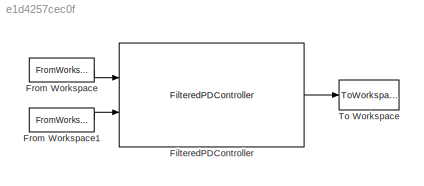
MODEL slx_e1d4257cec0f
KIND model
CONFIG AbsTol = auto
CONFIG EnableMultiTasking = off
CONFIG FixedStep = Ts
CONFIG MaxStep = auto
CONFIG MinStep = auto
CONFIG RelTol = 1e-3
CONFIG SampleTimeConstraint = Unconstrained
CONFIG Solver = FixedStepAuto
CONFIG SolverName = FixedStepAuto
CONFIG StartTime = 0.0
CONFIG StopTime = T
BLOCK [Reference] FilteredPDController  REF=filteredPDController_ul/FilteredPDController
  Ports = [2, 1]
  SourceBlock = filteredPDController_ul/FilteredPDController
BLOCK [FromWorkspace] From Workspace
  SampleTime = 0
  VariableName = setpoint
  ZeroCross = on
BLOCK [FromWorkspace] From Workspace1
  SampleTime = 0
  VariableName = measured
  ZeroCross = on
BLOCK [ToWorkspace] To Workspace
  FixptAsFi = on
  MaxDataPoints = inf
  Ports = [1]
  SampleTime = -1
  Save2DSignal = 3-D array (concatenate along third dimension)
  SaveFormat = Timeseries
  VariableName = response
LINE FilteredPDController:1 -> To Workspace:1
LINE From Workspace1:1 -> FilteredPDController:2
LINE From Workspace:1 -> FilteredPDController:1
